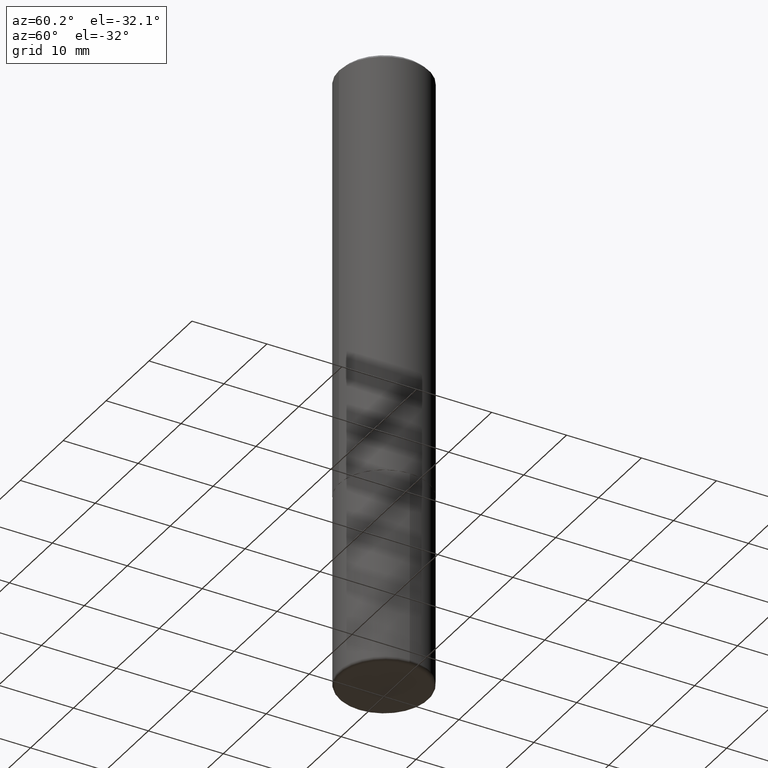
[diagram: clean part render]
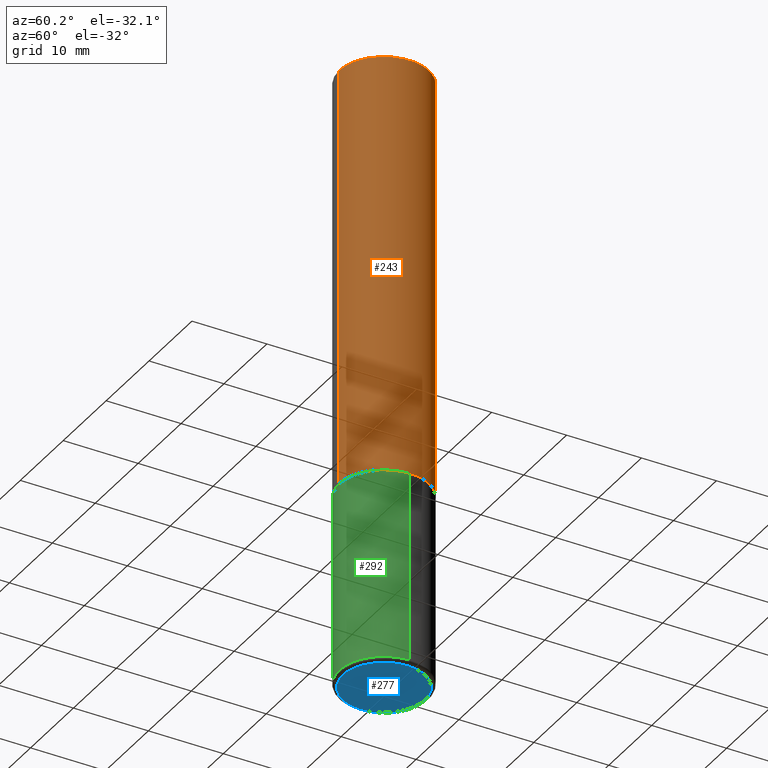
[diagram: same view with three faces highlighted in distinct colors, each labeled with its STEP entity id]
A machine part, auxiliary view with three faces highlighted in distinct colors.
Their STEP definitions:

[orange] entity #243 — the highlighted cylindrical surface (partial cylindrical patch) has radius 5.9995 mm, axis along (-0, 0, 1).
#1 = ORIENTED_EDGE ( 'NONE', *, *, #309, .T. ) ;
#5 = EDGE_CURVE ( 'NONE', #170, #102, #379, .T. ) ;
#64 = VERTEX_POINT ( 'NONE', #408 ) ;
#65 = DIRECTION ( 'NONE',  ( -2.450099953360415403E-29, 3.484849272499618930E-15, 1.000000000000000000 ) ) ;
#84 = CYLINDRICAL_SURFACE ( 'NONE', #105, 0.2362000000000001598 ) ;
#85 = FACE_OUTER_BOUND ( 'NONE', #164, .T. ) ;
#86 = ORIENTED_EDGE ( 'NONE', *, *, #372, .F. ) ;
#92 = DIRECTION ( 'NONE',  ( -2.450099953360415403E-29, 3.484849272499618930E-15, 1.000000000000000000 ) ) ;
#93 = ORIENTED_EDGE ( 'NONE', *, *, #5, .T. ) ;
#102 = VERTEX_POINT ( 'NONE', #368 ) ;
#105 = AXIS2_PLACEMENT_3D ( 'NONE', #351, #92, #410 ) ;
#129 = VECTOR ( 'NONE', #287, 39.37007874015748143 ) ;
#145 = CARTESIAN_POINT ( 'NONE',  ( -1.649375784469497117E-15, -0.2362000000000001598, 8.231213981644106002E-16 ) ) ;
#161 = CARTESIAN_POINT ( 'NONE',  ( 1.678301941865357577E-15, 0.2362000000000001598, -8.231213981644106002E-16 ) ) ;
#164 = EDGE_LOOP ( 'NONE', ( #93, #1, #86, #237 ) ) ;
#170 = VERTEX_POINT ( 'NONE', #238 ) ;
#187 = LINE ( 'NONE', #161, #129 ) ;
#195 = AXIS2_PLACEMENT_3D ( 'NONE', #361, #65, #199 ) ;
#197 = VERTEX_POINT ( 'NONE', #285 ) ;
#199 = DIRECTION ( 'NONE',  ( -6.982962677686265922E-15, -1.000000000000000000, 3.469747663417772663E-15 ) ) ;
#206 = CIRCLE ( 'NONE', #235, 0.2362000000000000210 ) ;
#214 = VECTOR ( 'NONE', #239, 39.37007874015748143 ) ;
#235 = AXIS2_PLACEMENT_3D ( 'NONE', #374, #244, #377 ) ;
#237 = ORIENTED_EDGE ( 'NONE', *, *, #331, .F. ) ;
#238 = CARTESIAN_POINT ( 'NONE',  ( -1.649375784469443080E-15, -0.2362000000000081257, -2.243099999999999206 ) ) ;
#239 = DIRECTION ( 'NONE',  ( -2.450099953360415403E-29, 3.484849272499618930E-15, 1.000000000000000000 ) ) ;
#243 = ADVANCED_FACE ( 'NONE', ( #85 ), #84, .T. ) ;
#244 = DIRECTION ( 'NONE',  ( -2.450099953360415403E-29, 3.484849272499618930E-15, 1.000000000000000000 ) ) ;
#285 = CARTESIAN_POINT ( 'NONE',  ( -1.620449627073635276E-15, -0.2362000000000001043, -0.01999999999999925449 ) ) ;
#287 = DIRECTION ( 'NONE',  ( -2.450099953360415403E-29, 3.484849272499618930E-15, 1.000000000000000000 ) ) ;
#309 = EDGE_CURVE ( 'NONE', #102, #64, #187, .T. ) ;
#331 = EDGE_CURVE ( 'NONE', #170, #197, #403, .T. ) ;
#351 = CARTESIAN_POINT ( 'NONE',  ( 0.000000000000000000, 0.000000000000000000, 0.000000000000000000 ) ) ;
#361 = CARTESIAN_POINT ( 'NONE',  ( 5.495819205382747907E-29, -7.816865403143895871E-15, -2.243100000000000094 ) ) ;
#368 = CARTESIAN_POINT ( 'NONE',  ( 1.678301941865385779E-15, 0.2361999999999924715, -2.243100000000000982 ) ) ;
#372 = EDGE_CURVE ( 'NONE', #197, #64, #206, .T. ) ;
#374 = CARTESIAN_POINT ( 'NONE',  ( 4.900199906720849654E-31, -6.969698544999262955E-17, -0.02000000000000007674 ) ) ;
#377 = DIRECTION ( 'NONE',  ( -6.982962677686265922E-15, -1.000000000000000000, 3.487819265831411350E-15 ) ) ;
#379 = CIRCLE ( 'NONE', #195, 0.2362000000000002986 ) ;
#403 = LINE ( 'NONE', #145, #214 ) ;
#408 = CARTESIAN_POINT ( 'NONE',  ( 1.649375784469496722E-15, 0.2361999999999999655, -0.02000000000000090247 ) ) ;
#410 = DIRECTION ( 'NONE',  ( -6.982962677686265922E-15, -1.000000000000000000, 3.484849272499619324E-15 ) ) ;

[blue] entity #277 — the highlighted planar face has unit normal (0, -0, -1).
#38 = AXIS2_PLACEMENT_3D ( 'NONE', #320, #154, #159 ) ;
#40 = EDGE_CURVE ( 'NONE', #68, #140, #417, .T. ) ;
#68 = VERTEX_POINT ( 'NONE', #209 ) ;
#78 = CARTESIAN_POINT ( 'NONE',  ( 7.991058417971172834E-29, -1.140911357093774960E-14, -3.267700000000000937 ) ) ;
#104 = ORIENTED_EDGE ( 'NONE', *, *, #40, .F. ) ;
#107 = ORIENTED_EDGE ( 'NONE', *, *, #160, .F. ) ;
#140 = VERTEX_POINT ( 'NONE', #212 ) ;
#144 = DIRECTION ( 'NONE',  ( -2.445468806185136597E-29, 3.491481338843145583E-15, 1.000000000000000000 ) ) ;
#154 = DIRECTION ( 'NONE',  ( 2.438088387897960049E-29, -3.491481338843145188E-15, -1.000000000000000000 ) ) ;
#159 = DIRECTION ( 'NONE',  ( -1.000000000000000000, 6.982962677686265922E-15, -4.876176775795935793E-29 ) ) ;
#160 = EDGE_CURVE ( 'NONE', #140, #68, #248, .T. ) ;
#180 = CARTESIAN_POINT ( 'NONE',  ( 7.991058417971172834E-29, -1.140911357093774960E-14, -3.267700000000000937 ) ) ;
#192 = PLANE ( 'NONE',  #38 ) ;
#196 = AXIS2_PLACEMENT_3D ( 'NONE', #180, #144, #310 ) ;
#209 = CARTESIAN_POINT ( 'NONE',  ( -0.2164999999999999980, -9.766408997357155292E-15, -3.267700000000000937 ) ) ;
#212 = CARTESIAN_POINT ( 'NONE',  ( 0.2164999999999999980, -1.292092499065682533E-14, -3.267700000000000937 ) ) ;
#223 = FACE_OUTER_BOUND ( 'NONE', #330, .T. ) ;
#248 = CIRCLE ( 'NONE', #196, 0.2164999999999999980 ) ;
#277 = ADVANCED_FACE ( 'NONE', ( #223 ), #192, .T. ) ;
#310 = DIRECTION ( 'NONE',  ( 1.000000000000000000, -6.982962677686267499E-15, 0.000000000000000000 ) ) ;
#320 = CARTESIAN_POINT ( 'NONE',  ( 2.232543125915028434E-29, -1.965563522349822115E-14, -3.267700000000000937 ) ) ;
#330 = EDGE_LOOP ( 'NONE', ( #107, #104 ) ) ;
#339 = DIRECTION ( 'NONE',  ( 1.000000000000000000, -6.982962677686267499E-15, 0.000000000000000000 ) ) ;
#353 = AXIS2_PLACEMENT_3D ( 'NONE', #78, #378, #339 ) ;
#378 = DIRECTION ( 'NONE',  ( -2.445468806185136597E-29, 3.491481338843145583E-15, 1.000000000000000000 ) ) ;
#417 = CIRCLE ( 'NONE', #353, 0.2164999999999999980 ) ;

[green] entity #292 — the highlighted cylindrical surface (partial cylindrical patch) has radius 5.9995 mm, axis along (-0, 0, 1).
#4 = VERTEX_POINT ( 'NONE', #67 ) ;
#15 = AXIS2_PLACEMENT_3D ( 'NONE', #242, #313, #16 ) ;
#16 = DIRECTION ( 'NONE',  ( 1.000000000000000000, -6.982962677686269077E-15, 0.000000000000000000 ) ) ;
#24 = DIRECTION ( 'NONE',  ( 1.000000000000000000, -6.982962677686265133E-15, 0.000000000000000000 ) ) ;
#30 = ORIENTED_EDGE ( 'NONE', *, *, #382, .T. ) ;
#34 = EDGE_CURVE ( 'NONE', #139, #416, #203, .T. ) ;
#46 = CARTESIAN_POINT ( 'NONE',  ( -0.2361999999999999933, 1.678301941865356591E-15, -1.161852468318208757E-29 ) ) ;
#48 = VECTOR ( 'NONE', #177, 39.37007874015748143 ) ;
#52 = DIRECTION ( 'NONE',  ( 1.000000000000000000, -6.982962677686266711E-15, 4.876176775795936353E-29 ) ) ;
#67 = CARTESIAN_POINT ( 'NONE',  ( 0.2362000000000000766, -1.298970717303203651E-14, -3.248000000000000220 ) ) ;
#75 = CARTESIAN_POINT ( 'NONE',  ( -0.2362000000000000766, -9.662029446697182017E-15, -3.248000000000000220 ) ) ;
#88 = DIRECTION ( 'NONE',  ( -2.445468806185136597E-29, 3.491481338843145583E-15, 1.000000000000000000 ) ) ;
#89 = VECTOR ( 'NONE', #304, 39.37007874015748143 ) ;
#110 = EDGE_CURVE ( 'NONE', #416, #297, #386, .T. ) ;
#112 = CARTESIAN_POINT ( 'NONE',  ( 0.2361999999999999933, -1.649375784469496131E-15, 1.151752954443000088E-29 ) ) ;
#125 = CYLINDRICAL_SURFACE ( 'NONE', #174, 0.2361999999999999933 ) ;
#139 = VERTEX_POINT ( 'NONE', #75 ) ;
#174 = AXIS2_PLACEMENT_3D ( 'NONE', #385, #388, #52 ) ;
#177 = DIRECTION ( 'NONE',  ( -2.445468806185136877E-29, 3.491481338843145188E-15, 1.000000000000000000 ) ) ;
#202 = ORIENTED_EDGE ( 'NONE', *, *, #302, .T. ) ;
#203 = LINE ( 'NONE', #46, #89 ) ;
#242 = CARTESIAN_POINT ( 'NONE',  ( 5.487876547960065873E-29, -7.835233272497903917E-15, -2.244100000000000428 ) ) ;
#250 = CARTESIAN_POINT ( 'NONE',  ( 0.2361999999999999933, -9.484609056967400443E-15, -2.244100000000000428 ) ) ;
#292 = ADVANCED_FACE ( 'NONE', ( #323 ), #125, .T. ) ;
#297 = VERTEX_POINT ( 'NONE', #250 ) ;
#302 = EDGE_CURVE ( 'NONE', #139, #4, #348, .T. ) ;
#304 = DIRECTION ( 'NONE',  ( -2.445468806185136877E-29, 3.491481338843145188E-15, 1.000000000000000000 ) ) ;
#311 = AXIS2_PLACEMENT_3D ( 'NONE', #383, #88, #24 ) ;
#313 = DIRECTION ( 'NONE',  ( -2.445468806185136597E-29, 3.491481338843145583E-15, 1.000000000000000000 ) ) ;
#323 = FACE_OUTER_BOUND ( 'NONE', #332, .T. ) ;
#332 = EDGE_LOOP ( 'NONE', ( #389, #202, #30, #334 ) ) ;
#334 = ORIENTED_EDGE ( 'NONE', *, *, #110, .F. ) ;
#340 = LINE ( 'NONE', #112, #48 ) ;
#346 = CARTESIAN_POINT ( 'NONE',  ( -0.2361999999999999933, -7.909480388664863981E-15, -2.244100000000000428 ) ) ;
#348 = CIRCLE ( 'NONE', #311, 0.2361999999999999933 ) ;
#382 = EDGE_CURVE ( 'NONE', #4, #297, #340, .T. ) ;
#383 = CARTESIAN_POINT ( 'NONE',  ( 7.942882682489324976E-29, -1.134033138856253841E-14, -3.248000000000000220 ) ) ;
#385 = CARTESIAN_POINT ( 'NONE',  ( 0.000000000000000000, 0.000000000000000000, 0.000000000000000000 ) ) ;
#386 = CIRCLE ( 'NONE', #15, 0.2361999999999999933 ) ;
#388 = DIRECTION ( 'NONE',  ( -2.445468806185136597E-29, 3.491481338843145583E-15, 1.000000000000000000 ) ) ;
#389 = ORIENTED_EDGE ( 'NONE', *, *, #34, .F. ) ;
#416 = VERTEX_POINT ( 'NONE', #346 ) ;